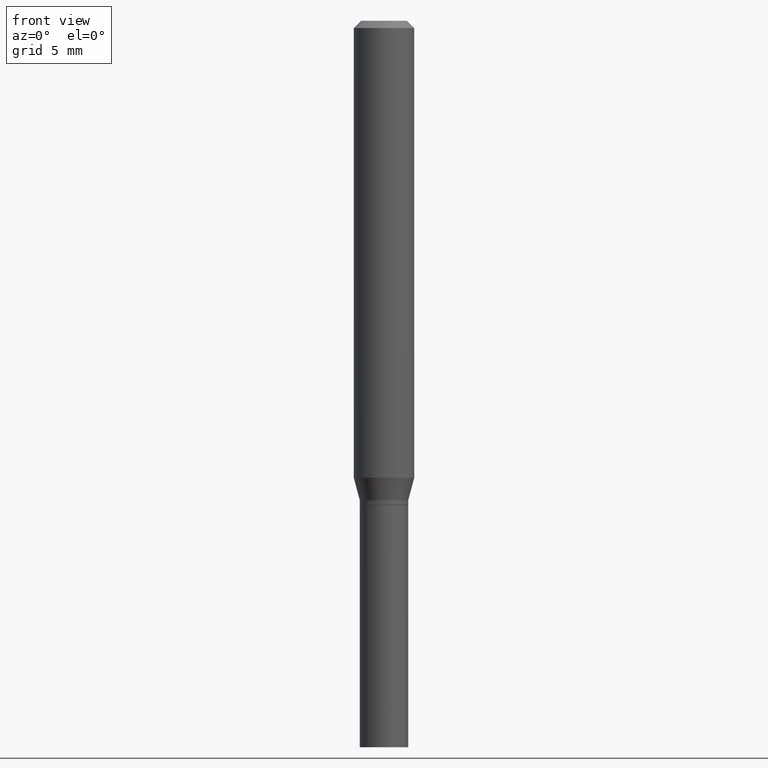
[diagram: clean part render]
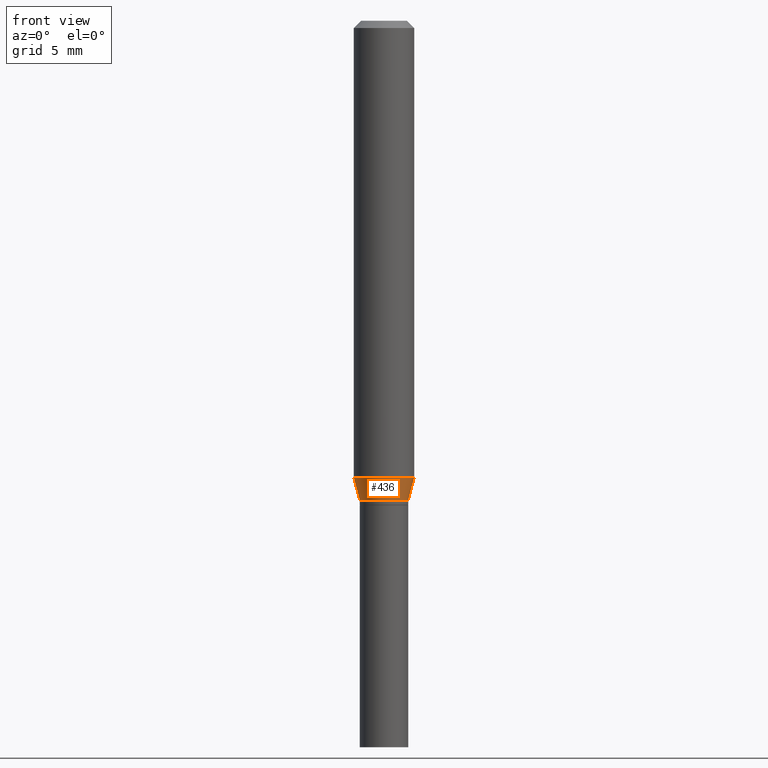
[diagram: same view with one face highlighted and labeled with its STEP entity id]
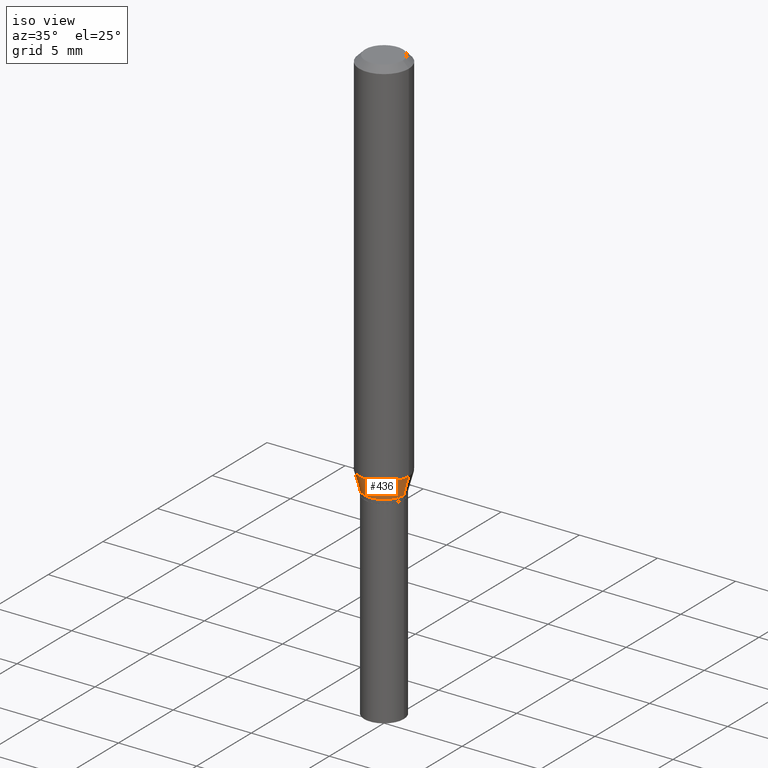
[diagram: same view with one face highlighted and labeled with its STEP entity id]
A machine part, front view. The second image highlights one B-rep face of the part: STEP entity #436.
A second angle (iso view) of the same face is appended — the face is thin or edge-on in the first view.
In plain terms, the highlighted conical surface has half-angle 15 deg.
Its self-contained STEP definition (entity closure, byte-faithful):
#9 = VECTOR ( 'NONE', #407, 39.37007874015748854 ) ;
#11 = CARTESIAN_POINT ( 'NONE',  ( -0.05000000000000006523, -3.101295157574663525E-15, -0.9900000000000001021 ) ) ;
#17 = EDGE_LOOP ( 'NONE', ( #24, #102, #369, #82 ) ) ;
#18 = DIRECTION ( 'NONE',  ( 1.000000000000000000, -6.982962677686265133E-15, 0.000000000000000000 ) ) ;
#19 = CARTESIAN_POINT ( 'NONE',  ( 0.05000000000000006523, -3.805714659339028452E-15, -0.9900000000000001021 ) ) ;
#24 = ORIENTED_EDGE ( 'NONE', *, *, #198, .F. ) ;
#30 = CIRCLE ( 'NONE', #114, 0.05000000000000006523 ) ;
#39 = CIRCLE ( 'NONE', #358, 0.06250000000000000000 ) ;
#61 = VERTEX_POINT ( 'NONE', #231 ) ;
#81 = CARTESIAN_POINT ( 'NONE',  ( 2.306931445210689436E-29, -3.293686703576700358E-15, -0.9433493649053894536 ) ) ;
#82 = ORIENTED_EDGE ( 'NONE', *, *, #192, .F. ) ;
#89 = CARTESIAN_POINT ( 'NONE',  ( 2.421014118123285332E-29, -3.456566525454714328E-15, -0.9900000000000001021 ) ) ;
#102 = ORIENTED_EDGE ( 'NONE', *, *, #462, .T. ) ;
#114 = AXIS2_PLACEMENT_3D ( 'NONE', #89, #241, #375 ) ;
#115 = CARTESIAN_POINT ( 'NONE',  ( -0.05000000000000006523, -2.975446325650650633E-15, -0.9900000000000001021 ) ) ;
#125 = CONICAL_SURFACE ( 'NONE', #183, 0.05000000000000006523, 0.2617993877991499629 ) ;
#168 = CARTESIAN_POINT ( 'NONE',  ( 0.05000000000000006523, -3.805714659339028452E-15, -0.9900000000000001021 ) ) ;
#183 = AXIS2_PLACEMENT_3D ( 'NONE', #413, #283, #18 ) ;
#192 = EDGE_CURVE ( 'NONE', #61, #201, #39, .T. ) ;
#198 = EDGE_CURVE ( 'NONE', #363, #61, #272, .T. ) ;
#201 = VERTEX_POINT ( 'NONE', #405 ) ;
#220 = EDGE_CURVE ( 'NONE', #291, #201, #279, .T. ) ;
#231 = CARTESIAN_POINT ( 'NONE',  ( -0.06250000000000000000, -2.849597493726637742E-15, -0.9433493649053894536 ) ) ;
#241 = DIRECTION ( 'NONE',  ( -2.445468806185136597E-29, 3.491481338843145583E-15, 1.000000000000000000 ) ) ;
#272 = LINE ( 'NONE', #11, #395 ) ;
#275 = DIRECTION ( 'NONE',  ( -0.2588190451025212391, 5.211531920934549464E-15, 0.9659258262890679791 ) ) ;
#279 = LINE ( 'NONE', #168, #9 ) ;
#283 = DIRECTION ( 'NONE',  ( -2.445468806185136597E-29, 3.491481338843145583E-15, 1.000000000000000000 ) ) ;
#291 = VERTEX_POINT ( 'NONE', #19 ) ;
#312 = DIRECTION ( 'NONE',  ( -2.445468806185136597E-29, 3.491481338843145583E-15, 1.000000000000000000 ) ) ;
#342 = DIRECTION ( 'NONE',  ( 1.000000000000000000, -6.982962677686262766E-15, 0.000000000000000000 ) ) ;
#358 = AXIS2_PLACEMENT_3D ( 'NONE', #81, #312, #342 ) ;
#363 = VERTEX_POINT ( 'NONE', #115 ) ;
#369 = ORIENTED_EDGE ( 'NONE', *, *, #220, .T. ) ;
#375 = DIRECTION ( 'NONE',  ( 1.000000000000000000, -6.982962677686265133E-15, 0.000000000000000000 ) ) ;
#395 = VECTOR ( 'NONE', #275, 39.37007874015748854 ) ;
#405 = CARTESIAN_POINT ( 'NONE',  ( 0.06250000000000000000, -3.730121870932091633E-15, -0.9433493649053894536 ) ) ;
#407 = DIRECTION ( 'NONE',  ( 0.2588190451025212391, 1.565188264969622362E-15, 0.9659258262890679791 ) ) ;
#413 = CARTESIAN_POINT ( 'NONE',  ( 2.421014118123285332E-29, -3.456566525454714328E-15, -0.9900000000000001021 ) ) ;
#436 = ADVANCED_FACE ( 'NONE', ( #448 ), #125, .T. ) ;
#448 = FACE_OUTER_BOUND ( 'NONE', #17, .T. ) ;
#462 = EDGE_CURVE ( 'NONE', #363, #291, #30, .T. ) ;